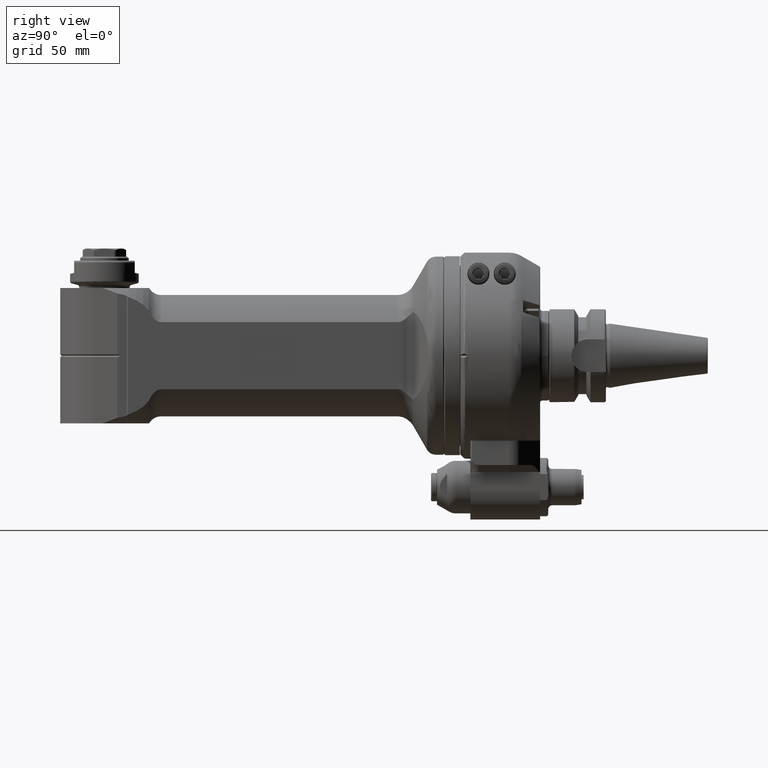
[diagram: clean part render]
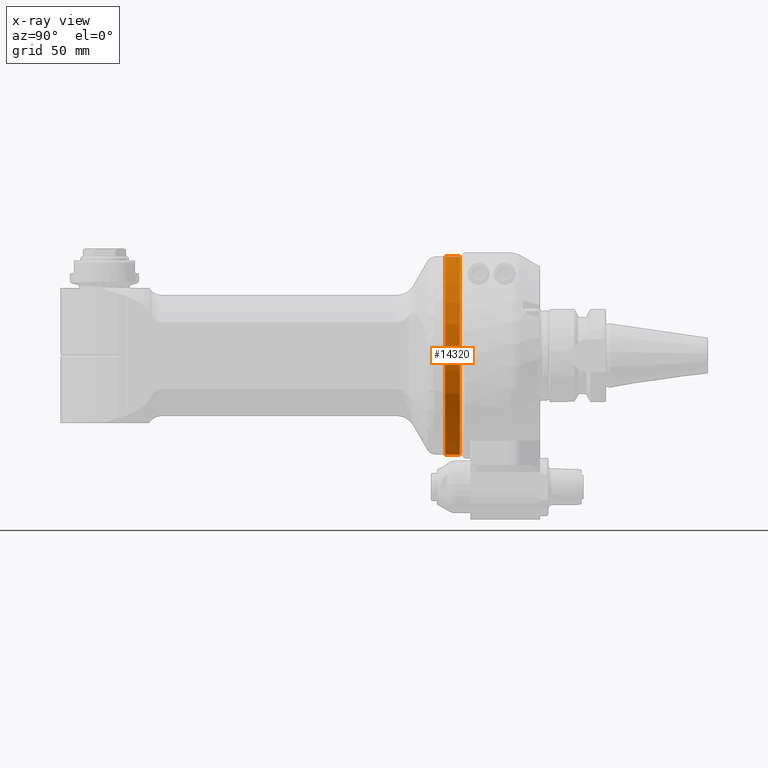
[diagram: x-ray — body ghosted, one internal face saturated and labeled with its STEP entity id]
A machine part, right view, then the same camera in x-ray: the body is ghosted and one INTERNAL B-rep face — a face not visible from any outside direction — is saturated and labeled: STEP entity #14320.
In plain terms, the highlighted cylindrical surface (bore or boss wall) has radius 49 mm, axis along (0, -1, -0).
Its self-contained STEP definition (entity closure, byte-faithful):
#651=CYLINDRICAL_SURFACE('',#15393,49.);
#1172=CIRCLE('',#15391,49.);
#1173=CIRCLE('',#15392,49.);
#1174=CIRCLE('',#15394,49.);
#2024=FACE_OUTER_BOUND('',#2887,.T.);
#2887=EDGE_LOOP('',(#10195,#10196,#10197,#10198,#10199));
#3852=LINE('',#22211,#4908);
#4908=VECTOR('',#17459,49.);
#6081=VERTEX_POINT('',#22204);
#6082=VERTEX_POINT('',#22205);
#6083=VERTEX_POINT('',#22210);
#7715=EDGE_CURVE('',#6081,#6082,#1172,.T.);
#7717=EDGE_CURVE('',#6082,#6081,#1173,.T.);
#7718=EDGE_CURVE('',#6081,#6083,#3852,.T.);
#7719=EDGE_CURVE('',#6083,#6083,#1174,.T.);
#10195=ORIENTED_EDGE('',*,*,#7715,.F.);
#10196=ORIENTED_EDGE('',*,*,#7718,.T.);
#10197=ORIENTED_EDGE('',*,*,#7719,.T.);
#10198=ORIENTED_EDGE('',*,*,#7718,.F.);
#10199=ORIENTED_EDGE('',*,*,#7717,.F.);
#14320=ADVANCED_FACE('',(#2024),#651,.T.);
#15391=AXIS2_PLACEMENT_3D('',#22206,#17452,#17453);
#15392=AXIS2_PLACEMENT_3D('',#22208,#17455,#17456);
#15393=AXIS2_PLACEMENT_3D('',#22209,#17457,#17458);
#15394=AXIS2_PLACEMENT_3D('',#22212,#17460,#17461);
#17452=DIRECTION('center_axis',(1.,0.,0.));
#17453=DIRECTION('ref_axis',(0.,-0.0871557427476639,0.996194698091745));
#17455=DIRECTION('center_axis',(1.,0.,0.));
#17456=DIRECTION('ref_axis',(0.,-0.0871557427476639,0.996194698091745));
#17457=DIRECTION('center_axis',(1.,0.,0.));
#17458=DIRECTION('ref_axis',(0.,-0.0871557427476639,0.996194698091745));
#17459=DIRECTION('',(-1.,0.,0.));
#17460=DIRECTION('center_axis',(1.,0.,0.));
#17461=DIRECTION('ref_axis',(0.,0.0871557427476639,-0.996194698091745));
#22204=CARTESIAN_POINT('',(11.5,4.270631394635,-48.8135402065));
#22205=CARTESIAN_POINT('',(11.5,-4.27063139463553,48.8135402064955));
#22206=CARTESIAN_POINT('Origin',(11.5,0.,0.));
#22208=CARTESIAN_POINT('Origin',(11.5,0.,0.));
#22209=CARTESIAN_POINT('Origin',(8.1,0.,0.));
#22210=CARTESIAN_POINT('',(4.2,4.27063139463554,-48.8135402064955));
#22211=CARTESIAN_POINT('',(8.1,4.27063139463554,-48.8135402064955));
#22212=CARTESIAN_POINT('Origin',(4.2,0.,0.));